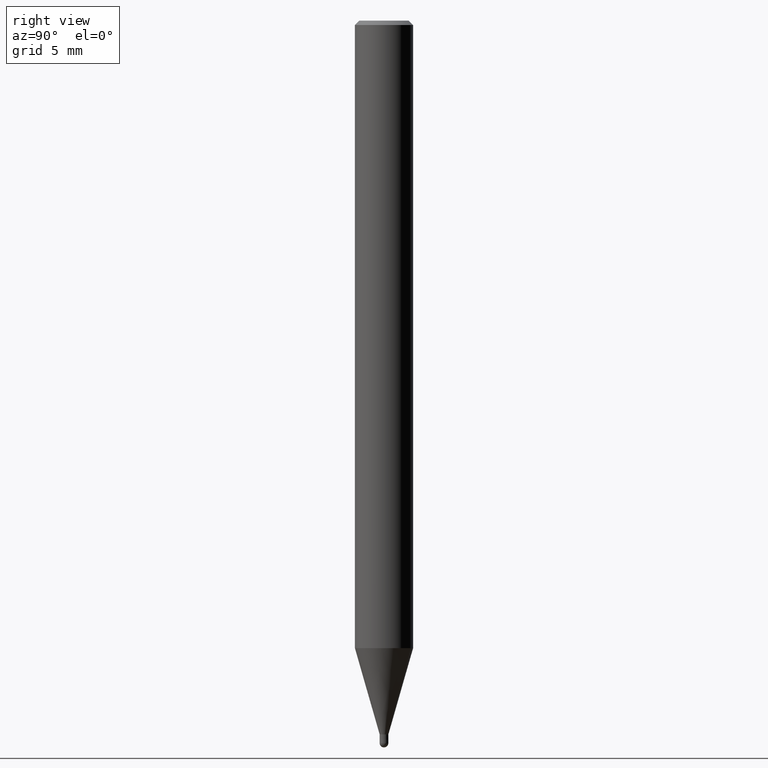
[diagram: clean part render]
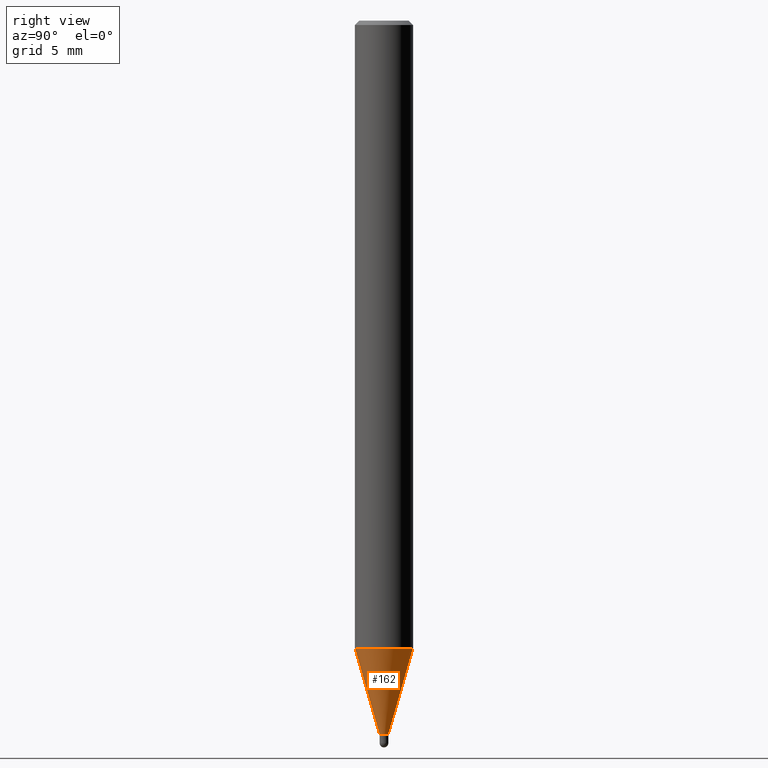
[diagram: same view with one face highlighted and labeled with its STEP entity id]
A machine part, right view. The second image highlights one B-rep face of the part: STEP entity #162.
In plain terms, the highlighted conical surface has half-angle 15.999 deg.
Its self-contained STEP definition (entity closure, byte-faithful):
#96=VERTEX_POINT('',#225);
#110=EDGE_CURVE('',#96,#176,#240,.T.);
#136=EDGE_CURVE('',#186,#188,#267,.T.);
#162=ADVANCED_FACE('',(#297),#298,.T.);
#168=EDGE_CURVE('',#176,#188,#306,.T.);
#176=VERTEX_POINT('',#315);
#184=EDGE_CURVE('',#186,#96,#323,.T.);
#186=VERTEX_POINT('',#325);
#188=VERTEX_POINT('',#327);
#225=CARTESIAN_POINT('',(0.0,0.29995,-49.1));
#240=CIRCLE('',#375,0.29995);
#267=CIRCLE('',#412,1.99995);
#297=FACE_OUTER_BOUND('',#450,.T.);
#298=CONICAL_SURFACE('',#451,1.14995,0.279235008263551);
#306=LINE('',#460,#461);
#315=CARTESIAN_POINT('',(3.67320675829022E-017,-0.29995,-49.1));
#323=LINE('',#483,#484);
#325=CARTESIAN_POINT('',(0.0,1.99995,-43.171));
#327=CARTESIAN_POINT('',(2.44915147732706E-016,-1.99995,-43.171));
#375=AXIS2_PLACEMENT_3D('',#528,#529,#530);
#412=AXIS2_PLACEMENT_3D('',#549,#550,#551);
#450=EDGE_LOOP('',(#602,#603,#604,#605));
#451=AXIS2_PLACEMENT_3D('',#606,#607,#608);
#460=CARTESIAN_POINT('',(1.40823607657804E-016,-1.14995,-46.1355));
#461=VECTOR('',#623,1.0);
#483=CARTESIAN_POINT('',(-1.40823607657804E-016,1.14995,-46.1355));
#484=VECTOR('',#641,1.0);
#528=CARTESIAN_POINT('',(0.0,0.0,-49.1));
#529=DIRECTION('',(0.0,0.0,-1.0));
#530=DIRECTION('',(0.0,1.0,0.0));
#549=CARTESIAN_POINT('',(0.0,0.0,-43.171));
#550=DIRECTION('',(0.0,0.0,-1.0));
#551=DIRECTION('',(0.0,1.0,0.0));
#602=ORIENTED_EDGE('',*,*,#184,.F.);
#603=ORIENTED_EDGE('',*,*,#136,.T.);
#604=ORIENTED_EDGE('',*,*,#168,.F.);
#605=ORIENTED_EDGE('',*,*,#110,.F.);
#606=CARTESIAN_POINT('',(0.0,0.0,-46.1355));
#607=DIRECTION('',(-0.0,-0.0,1.0));
#608=DIRECTION('',(0.0,1.0,0.0));
#623=DIRECTION('',(3.37526454267793E-017,-0.275620368303878,0.961266566866878));
#641=DIRECTION('',(3.37526454267793E-017,-0.275620368303878,-0.961266566866878));